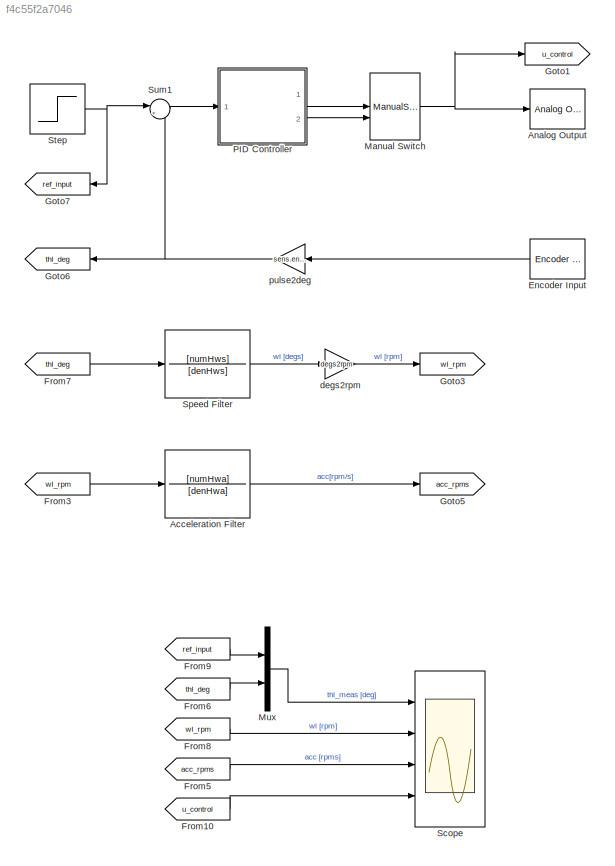
MODEL slx_f4c55f2a7046
KIND model
CONFIG AbsTol = auto
CONFIG EnableMultiTasking = off
CONFIG FixedStep = 0.001
CONFIG MaxStep = auto
CONFIG MinStep = auto
CONFIG RelTol = 1e-3
CONFIG SampleTimeConstraint = Unconstrained
CONFIG SolverName = ode3
CONFIG StartTime = 0.0
CONFIG StopTime = 5
BLOCK [TransferFcn] Acceleration Filter
  Denominator = [denHwa]
  Numerator = [numHwa]
BLOCK [Reference] Analog Output  REF=sldrtlib/Analog Output
  AttributesFormatString = National Instruments\nPCI-6221 [auto]
  Ports = [1]
  SourceBlock = sldrtlib/Analog Output
  SourceProductBaseCode = WT
  SourceType = Simulink Desktop Real-Time Analog Output
BLOCK [Reference] Encoder Input  REF=sldrtlib/Encoder Input
  AttributesFormatString = National Instruments\nPCI-6221 [auto]
  Ports = [0, 1]
  SourceBlock = sldrtlib/Encoder Input
  SourceProductBaseCode = WT
  SourceType = Simulink Desktop Real-Time Encoder Input
BLOCK [From] From10
  GotoTag = u_control
BLOCK [From] From3
  GotoTag = wl_rpm
BLOCK [From] From5
  GotoTag = acc_rpms
BLOCK [From] From6
  GotoTag = thl_deg
BLOCK [From] From7
  GotoTag = thl_deg
BLOCK [From] From8
  GotoTag = wl_rpm
BLOCK [From] From9
  GotoTag = ref_input
BLOCK [Goto] Goto1
  GotoTag = u_control
BLOCK [Goto] Goto3
  GotoTag = wl_rpm
BLOCK [Goto] Goto5
  GotoTag = acc_rpms
BLOCK [Goto] Goto6
  GotoTag = thl_deg
BLOCK [Goto] Goto7
  GotoTag = ref_input
BLOCK [ManualSwitch] Manual Switch
  CurrentSetting = 0
BLOCK [Mux] Mux
  DisplayOption = bar
  Inputs = 2
  Ports = [2, 1]
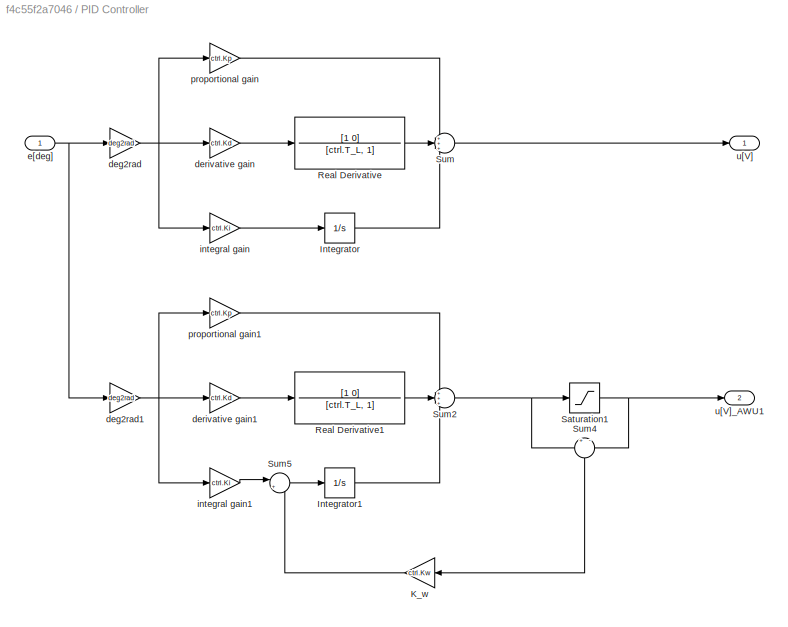
BLOCK [SubSystem] PID Controller
  Ports = [1, 2]
  RequestExecContextInheritance = off
BLOCK [Integrator] PID Controller/Integrator
  Ports = [1, 1]
BLOCK [Integrator] PID Controller/Integrator1
  Ports = [1, 1]
BLOCK [Gain] PID Controller/K_w
  Gain = ctrl.Kw
BLOCK [TransferFcn] PID Controller/Real Derivative
  Denominator = [ctrl.T_L, 1]
  Numerator = [1 0]
BLOCK [TransferFcn] PID Controller/Real Derivative1
  Denominator = [ctrl.T_L, 1]
  Numerator = [1 0]
BLOCK [Saturate] PID Controller/Saturation1
  LowerLimit = -10
  UpperLimit = 10
BLOCK [Sum] PID Controller/Sum
  Inputs = +++
  Ports = [3, 1]
BLOCK [Sum] PID Controller/Sum2
  Inputs = +++
  Ports = [3, 1]
BLOCK [Sum] PID Controller/Sum4
  Inputs = +|-
  NameLocation = left
  Ports = [2, 1]
BLOCK [Sum] PID Controller/Sum5
  Inputs = |+-
  Ports = [2, 1]
BLOCK [Gain] PID Controller/deg2rad
  Gain = deg2rad
BLOCK [Gain] PID Controller/deg2rad1
  Gain = deg2rad
BLOCK [Gain] PID Controller/derivative gain
  Gain = ctrl.Kd
BLOCK [Gain] PID Controller/derivative gain1
  Gain = ctrl.Kd
BLOCK [Inport] PID Controller/e[deg]
BLOCK [Gain] PID Controller/integral gain
  Gain = ctrl.Ki
BLOCK [Gain] PID Controller/integral gain1
  Gain = ctrl.Ki
BLOCK [Gain] PID Controller/proportional gain
  Gain = ctrl.Kp
BLOCK [Gain] PID Controller/proportional gain1
  Gain = ctrl.Kp
BLOCK [Outport] PID Controller/u[V]
BLOCK [Outport] PID Controller/u[V]_AWU1
  Port = 2
BLOCK [Scope] Scope
  Floating = off
  NumInputPorts = 4
  Ports = [4]
  ScopeSpecificationString = Simulink.scopes.TimeScopeBlockCfg('CurrentConfiguration', extmgr.ConfigurationSet(extmgr.Configuration('Core','General UI',true),extmgr.Configuration('Core','Source UI',true),extmgr.Configuration('Sources','WiredSimulink',true,'DataLogging',true,'DataLoggingSaveFormat','StructureWithTime','DataLoggingVariableName','MotorData'),extmgr.Configuration('Visuals','Time Domain',true,'SerializedDisplays',...<+3597ch>
BLOCK [TransferFcn] Speed Filter
  Denominator = [denHws]
  Numerator = [numHws]
BLOCK [Step] Step
  After = step_size
  SampleTime = 0
BLOCK [Sum] Sum1
  Inputs = |+-
  Ports = [2, 1]
BLOCK [Gain] degs2rpm
  Gain = degs2rpm
BLOCK [Gain] pulse2deg
  Gain = sens.enc.pulse2deg
LINE Acceleration Filter:1 -> Goto5:1
LINE Encoder Input:1 -> pulse2deg:1
LINE From10:1 -> Scope:4
LINE From3:1 -> Acceleration Filter:1
LINE From5:1 -> Scope:3
LINE From6:1 -> Mux:2
LINE From7:1 -> Speed Filter:1
LINE From8:1 -> Scope:2
LINE From9:1 -> Mux:1
NET Manual Switch:1 -> Analog Output:1, Goto1:1
LINE Mux:1 -> Scope:1
LINE PID Controller/Integrator1:1 -> PID Controller/Sum2:3
LINE PID Controller/Integrator:1 -> PID Controller/Sum:3
LINE PID Controller/K_w:1 -> PID Controller/Sum5:2
LINE PID Controller/Real Derivative1:1 -> PID Controller/Sum2:2
LINE PID Controller/Real Derivative:1 -> PID Controller/Sum:2
NET PID Controller/Saturation1:1 -> PID Controller/Sum4:2, PID Controller/u[V]_AWU1:1
NET PID Controller/Sum2:1 -> PID Controller/Saturation1:1, PID Controller/Sum4:1
LINE PID Controller/Sum4:1 -> PID Controller/K_w:1
LINE PID Controller/Sum5:1 -> PID Controller/Integrator1:1
LINE PID Controller/Sum:1 -> PID Controller/u[V]:1
NET PID Controller/deg2rad1:1 -> PID Controller/derivative gain1:1, PID Controller/integral gain1:1, PID Controller/proportional gain1:1
NET PID Controller/deg2rad:1 -> PID Controller/derivative gain:1, PID Controller/integral gain:1, PID Controller/proportional gain:1
LINE PID Controller/derivative gain1:1 -> PID Controller/Real Derivative1:1
LINE PID Controller/derivative gain:1 -> PID Controller/Real Derivative:1
NET PID Controller/e[deg]:1 -> PID Controller/deg2rad1:1, PID Controller/deg2rad:1
LINE PID Controller/integral gain1:1 -> PID Controller/Sum5:1
LINE PID Controller/integral gain:1 -> PID Controller/Integrator:1
LINE PID Controller/proportional gain1:1 -> PID Controller/Sum2:1
LINE PID Controller/proportional gain:1 -> PID Controller/Sum:1
LINE PID Controller:1 -> Manual Switch:1
LINE PID Controller:2 -> Manual Switch:2
LINE Speed Filter:1 -> degs2rpm:1
NET Step:1 -> Goto7:1, Sum1:1
LINE Sum1:1 -> PID Controller:1
LINE degs2rpm:1 -> Goto3:1
NET pulse2deg:1 -> Goto6:1, Sum1:2
note: NET lines group one-source signal fan-out (src -> all destinations, sorted); 1:1 wires keep LINE
